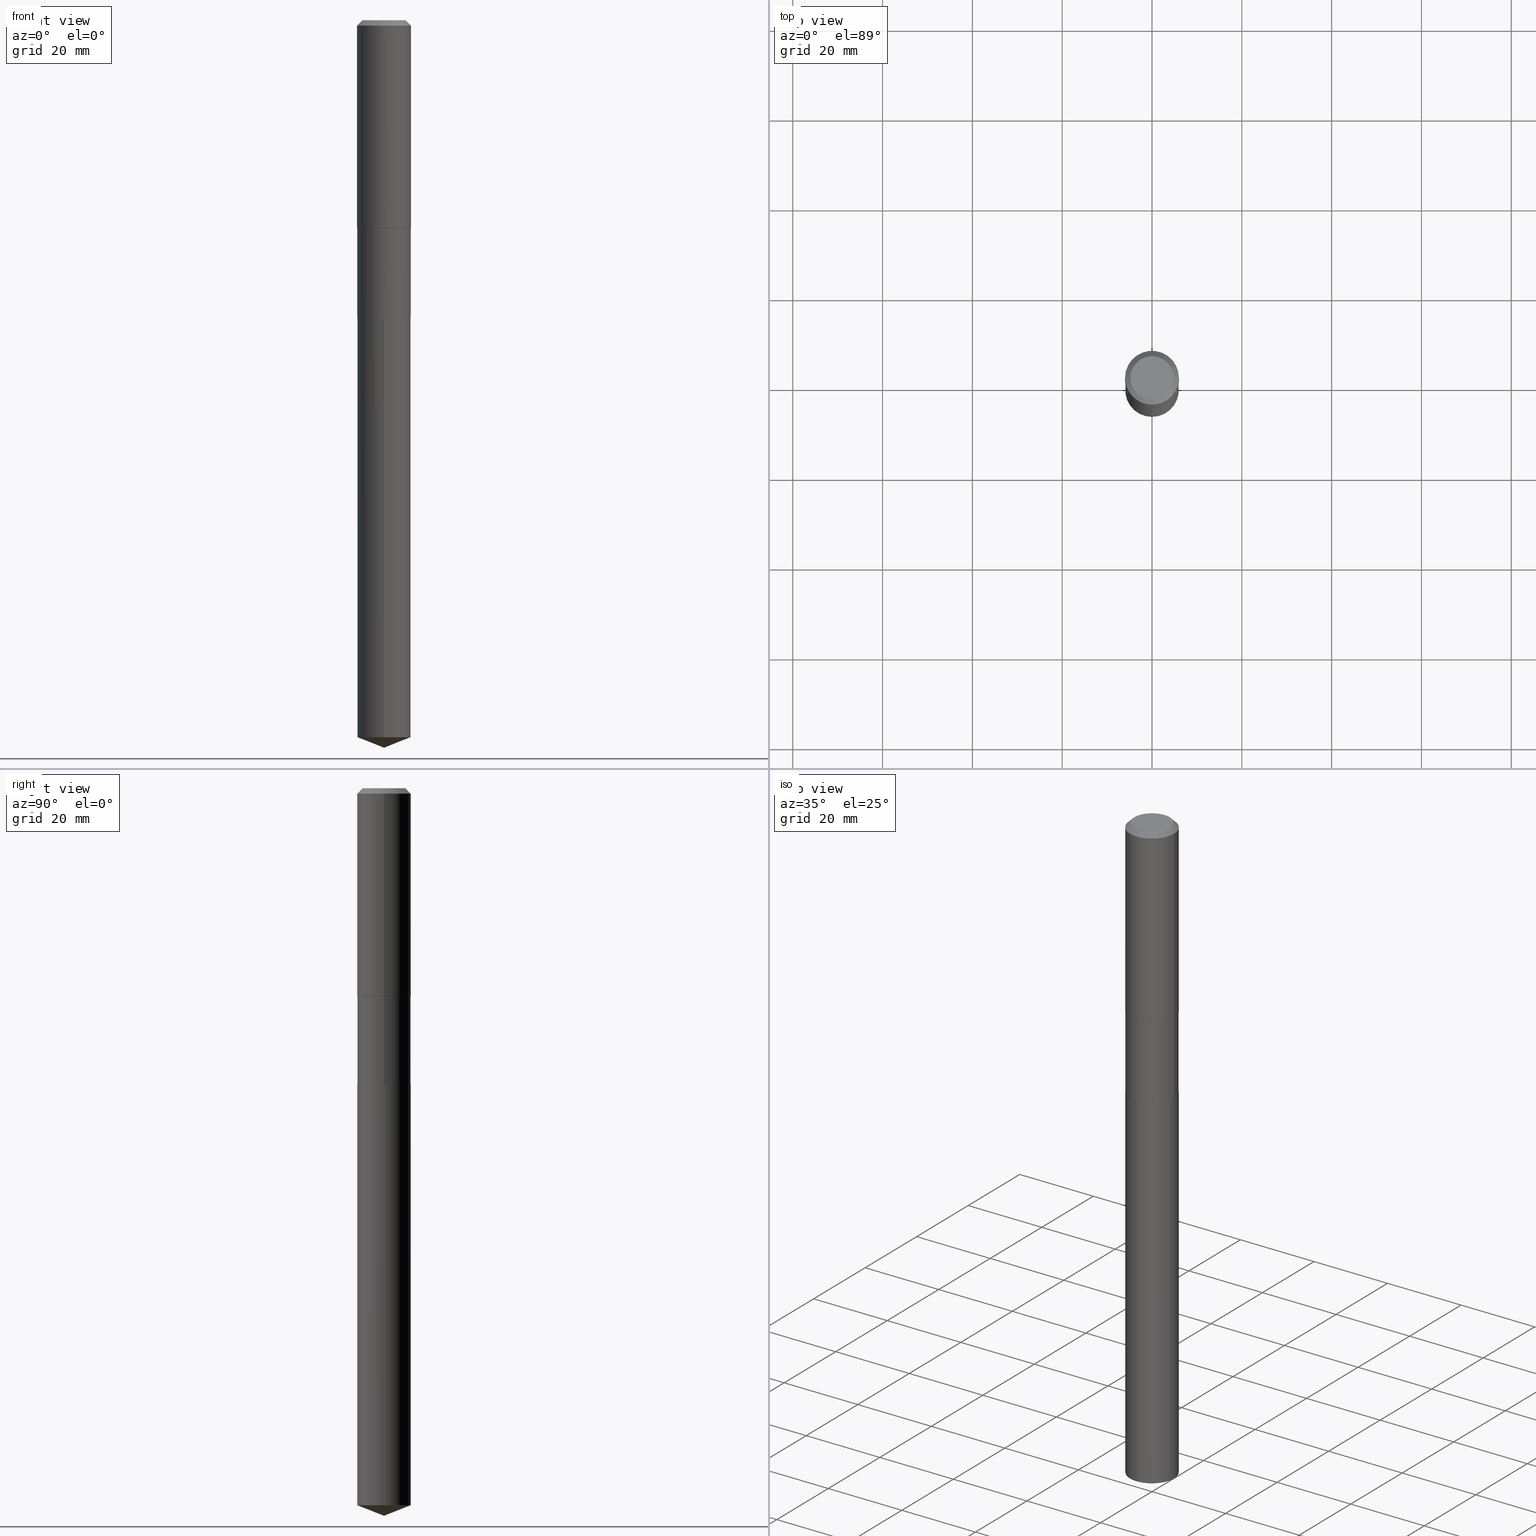
[diagram: canonical four-view strip — front | top / right | iso, engineering-drawing reading convention]
A machine part, canonical four-view strip (front | top / right | iso — engineering-drawing reading convention). The complete STEP part file that produces these views, byte-faithful:
ISO-10303-21;
HEADER;
FILE_DESCRIPTION (( 'STEP AP203' ),
    '1' );
FILE_NAME ('56498.STEP',
    '2024-04-24T18:14:39',
    ( '' ),
    ( '' ),
    'SwSTEP 2.0',
    'SolidWorks 2023',
    '' );
FILE_SCHEMA (( 'CONFIG_CONTROL_DESIGN' ));
ENDSEC;

DATA;
#1 = APPROVAL ( #47, 'UNSPECIFIED' ) ;
#2 = CARTESIAN_POINT ( 'NONE',  ( -0.2362000000000001321, 1.678301941865357577E-15, -1.161852468318209457E-29 ) ) ;
#3 = VECTOR ( 'NONE', #214, 39.37007874015748143 ) ;
#4 = EDGE_CURVE ( 'NONE', #413, #60, #53, .T. ) ;
#5 = LINE ( 'NONE', #144, #486 ) ;
#6 = DIRECTION ( 'NONE',  ( -2.445468806185136597E-29, 3.491481338843145583E-15, 1.000000000000000000 ) ) ;
#7 = EDGE_LOOP ( 'NONE', ( #440, #189, #9, #14 ) ) ;
#8 = DATE_AND_TIME ( #268, #211 ) ;
#9 = ORIENTED_EDGE ( 'NONE', *, *, #290, .T. ) ;
#10 = AXIS2_PLACEMENT_3D ( 'NONE', #411, #184, #182 ) ;
#11 = PERSON_AND_ORGANIZATION_ROLE ( 'creator' ) ;
#12 = DIRECTION ( 'NONE',  ( -2.445468806185136597E-29, 3.491481338843145583E-15, 1.000000000000000000 ) ) ;
#13 = LINE ( 'NONE', #243, #477 ) ;
#14 = ORIENTED_EDGE ( 'NONE', *, *, #44, .F. ) ;
#15 = COORDINATED_UNIVERSAL_TIME_OFFSET ( 5, 0, .BEHIND. ) ;
#16 = ORIENTED_EDGE ( 'NONE', *, *, #44, .T. ) ;
#17 = LENGTH_MEASURE_WITH_UNIT ( LENGTH_MEASURE( 0.02539999999999999897 ), #26 );
#18 = DIRECTION ( 'NONE',  ( 1.000000000000000000, -6.982962677686267499E-15, 0.000000000000000000 ) ) ;
#19 = MANIFOLD_SOLID_BREP ( 'Body-Move/Copy2[2]', #320 ) ;
#20 = EDGE_CURVE ( 'NONE', #326, #436, #399, .T. ) ;
#21 = DIRECTION ( 'NONE',  ( 1.000000000000000000, -6.982962677686265133E-15, 0.000000000000000000 ) ) ;
#22 = EDGE_LOOP ( 'NONE', ( #224, #400, #433, #256 ) ) ;
#23 = DIRECTION ( 'NONE',  ( -2.445468806185136597E-29, 3.491481338843145583E-15, 1.000000000000000000 ) ) ;
#24 = ORIENTED_EDGE ( 'NONE', *, *, #247, .T. ) ;
#25 = CARTESIAN_POINT ( 'NONE',  ( 4.449285945973238276E-29, -6.352401147891219622E-15, -1.819400000000000350 ) ) ;
#26 =( LENGTH_UNIT ( ) NAMED_UNIT ( * ) SI_UNIT ( $, .METRE. ) );
#27 = CIRCLE ( 'NONE', #142, 0.2343999999999999972 ) ;
#28 = EDGE_LOOP ( 'NONE', ( #45, #460 ) ) ;
#29 = DIRECTION ( 'NONE',  ( 1.000000000000000000, -6.982962677686265133E-15, 0.000000000000000000 ) ) ;
#30 = FACE_OUTER_BOUND ( 'NONE', #276, .T. ) ;
#31 = DIRECTION ( 'NONE',  ( 0.000000000000000000, 0.000000000000000000, 1.000000000000000000 ) ) ;
#32 = ORIENTED_EDGE ( 'NONE', *, *, #194, .T. ) ;
#33 = DIRECTION ( 'NONE',  ( 2.445468806185136597E-29, -3.491481338843145583E-15, -1.000000000000000000 ) ) ;
#34 = EDGE_CURVE ( 'NONE', #326, #134, #279, .T. ) ;
#35 = VECTOR ( 'NONE', #379, 39.37007874015748143 ) ;
#36 = DIRECTION ( 'NONE',  ( 1.000000000000000000, -6.982962677686263555E-15, 0.000000000000000000 ) ) ;
#37 = LINE ( 'NONE', #487, #272 ) ;
#38 = DIRECTION ( 'NONE',  ( 6.982962677686265922E-15, 1.000000000000000000, -3.491616999277284562E-15 ) ) ;
#39 = ADVANCED_FACE ( 'NONE', ( #312 ), #167, .T. ) ;
#40 = CARTESIAN_POINT ( 'NONE',  ( 1.537080967831005091E-28, -2.194644142980637157E-14, -6.285567384515859501 ) ) ;
#41 = LOCAL_TIME ( 14, 14, 39.00000000000000000, #154 ) ;
#42 = ORIENTED_EDGE ( 'NONE', *, *, #393, .T. ) ;
#43 = CALENDAR_DATE ( 2024, 24, 4 ) ;
#44 = EDGE_CURVE ( 'NONE', #178, #246, #69, .T. ) ;
#45 = ORIENTED_EDGE ( 'NONE', *, *, #393, .F. ) ;
#46 = VECTOR ( 'NONE', #476, 39.37007874015748143 ) ;
#47 = APPROVAL_STATUS ( 'not_yet_approved' ) ;
#48 = CIRCLE ( 'NONE', #152, 0.1889600000000000168 ) ;
#49 = DIRECTION ( 'NONE',  ( -2.445468806185136597E-29, 3.491481338843145583E-15, 1.000000000000000000 ) ) ;
#50 = ORIENTED_EDGE ( 'NONE', *, *, #344, .T. ) ;
#51 = ADVANCED_FACE ( 'NONE', ( #30 ), #61, .F. ) ;
#52 = EDGE_LOOP ( 'NONE', ( #295, #16, #116, #323 ) ) ;
#53 = CIRCLE ( 'NONE', #289, 0.2362000000000000210 ) ;
#54 = AXIS2_PLACEMENT_3D ( 'NONE', #363, #398, #83 ) ;
#55 = DIRECTION ( 'NONE',  ( -2.445374075010293314E-29, 3.491616999277284957E-15, 1.000000000000000000 ) ) ;
#56 = ADVANCED_FACE ( 'NONE', ( #135 ), #368, .F. ) ;
#57 = CYLINDRICAL_SURFACE ( 'NONE', #125, 0.2343999999999999972 ) ;
#58 = DIRECTION ( 'NONE',  ( -2.445468806185136597E-29, 3.491481338843145583E-15, 1.000000000000000000 ) ) ;
#59 = FACE_OUTER_BOUND ( 'NONE', #22, .T. ) ;
#60 = VERTEX_POINT ( 'NONE', #222 ) ;
#61 = PLANE ( 'NONE',  #347 ) ;
#62 = EDGE_LOOP ( 'NONE', ( #159, #336, #251, #245 ) ) ;
#63 = DIRECTION ( 'NONE',  ( 1.000000000000000000, -6.982962677686263555E-15, 0.000000000000000000 ) ) ;
#64 = EDGE_CURVE ( 'NONE', #485, #123, #437, .T. ) ;
#65 = ORIENTED_EDGE ( 'NONE', *, *, #430, .F. ) ;
#66 = DIRECTION ( 'NONE',  ( -1.000000000000000000, 6.982962677686267499E-15, 0.000000000000000000 ) ) ;
#67 = PRODUCT_DEFINITION_SHAPE ( 'NONE', 'NONE',  #216 ) ;
#68 = CC_DESIGN_PERSON_AND_ORGANIZATION_ASSIGNMENT ( #108, #234, ( #109 ) ) ;
#69 = CIRCLE ( 'NONE', #95, 0.2344000000000000250 ) ;
#70 = DIRECTION ( 'NONE',  ( 1.000000000000000000, -6.982962677686263555E-15, 0.000000000000000000 ) ) ;
#71 = CIRCLE ( 'NONE', #352, 0.2343999999999999972 ) ;
#72 = DIRECTION ( 'NONE',  ( -6.982962677686265922E-15, -1.000000000000000000, 2.330928322239132474E-15 ) ) ;
#73 = EDGE_CURVE ( 'NONE', #246, #326, #90, .T. ) ;
#74 = LINE ( 'NONE', #107, #454 ) ;
#75 = APPROVAL_DATE_TIME ( #238, #369 ) ;
#76 = DIRECTION ( 'NONE',  ( 1.000000000000000000, -6.982962677686266711E-15, 4.876185090822587894E-29 ) ) ;
#77 = ORIENTED_EDGE ( 'NONE', *, *, #422, .F. ) ;
#78 = EDGE_CURVE ( 'NONE', #483, #284, #225, .T. ) ;
#79 = ORIENTED_EDGE ( 'NONE', *, *, #267, .T. ) ;
#80 = ORIENTED_EDGE ( 'NONE', *, *, #410, .T. ) ;
#81 = AXIS2_PLACEMENT_3D ( 'NONE', #291, #254, #443 ) ;
#82 = ORIENTED_EDGE ( 'NONE', *, *, #465, .T. ) ;
#83 = DIRECTION ( 'NONE',  ( -6.982962677686265922E-15, -1.000000000000000000, 2.330928322239132474E-15 ) ) ;
#84 = EDGE_LOOP ( 'NONE', ( #353, #77, #446, #274 ) ) ;
#85 = CARTESIAN_POINT ( 'NONE',  ( 1.559635131300814861E-28, -2.226918405969060359E-14, -6.377900000000001235 ) ) ;
#86 = CIRCLE ( 'NONE', #262, 0.2362000000000000210 ) ;
#87 =( NAMED_UNIT ( * ) SI_UNIT ( $, .STERADIAN. ) SOLID_ANGLE_UNIT ( ) );
#88 = DIRECTION ( 'NONE',  ( 1.000000000000000000, -6.982962677686269077E-15, 0.000000000000000000 ) ) ;
#89 = ORIENTED_EDGE ( 'NONE', *, *, #304, .F. ) ;
#90 = LINE ( 'NONE', #473, #223 ) ;
#91 = DIRECTION ( 'NONE',  ( 1.000000000000000000, -6.982962677686266711E-15, 4.876176775795936353E-29 ) ) ;
#92 = ORIENTED_EDGE ( 'NONE', *, *, #422, .T. ) ;
#93 = DIRECTION ( 'NONE',  ( -2.445468806185136597E-29, 3.491481338843145583E-15, 1.000000000000000000 ) ) ;
#94 = CARTESIAN_POINT ( 'NONE',  ( 1.665512172621738122E-15, 0.2343999999999909212, -2.598400000000001597 ) ) ;
#95 = AXIS2_PLACEMENT_3D ( 'NONE', #244, #49, #362 ) ;
#96 = AXIS2_PLACEMENT_3D ( 'NONE', #450, #33, #66 ) ;
#97 = AXIS2_PLACEMENT_3D ( 'NONE', #213, #405, #91 ) ;
#98 = CARTESIAN_POINT ( 'NONE',  ( -1.636806451649507083E-15, -0.2344000000000218964, -6.285567384515857725 ) ) ;
#99 = ADVANCED_FACE ( 'NONE', ( #337 ), #377, .T. ) ;
#100 = ORIENTED_EDGE ( 'NONE', *, *, #34, .F. ) ;
#101 = DIRECTION ( 'NONE',  ( -6.982962677686265922E-15, -1.000000000000000000, 4.661856644478264948E-15 ) ) ;
#102 = CC_DESIGN_DATE_AND_TIME_ASSIGNMENT ( #121, #277, ( #109 ) ) ;
#103 = CARTESIAN_POINT ( 'NONE',  ( 0.000000000000000000, 0.000000000000000000, 0.000000000000000000 ) ) ;
#104 = VECTOR ( 'NONE', #231, 39.37007874015748143 ) ;
#105 = DIRECTION ( 'NONE',  ( -2.445468806185136597E-29, 3.491481338843145583E-15, 1.000000000000000000 ) ) ;
#106 = CIRCLE ( 'NONE', #321, 0.2344000000000000250 ) ;
#107 = CARTESIAN_POINT ( 'NONE',  ( -0.2362000000000000210, 1.484438206022545019E-15, -0.04724000000000030952 ) ) ;
#108 = PERSON_AND_ORGANIZATION ( #265, #166 ) ;
#109 = SECURITY_CLASSIFICATION ( '', '', #168 ) ;
#110 = DIRECTION ( 'NONE',  ( -2.445374075010293314E-29, 3.491616999277284957E-15, 1.000000000000000000 ) ) ;
#111 = PERSON_AND_ORGANIZATION_ROLE ( 'creator' ) ;
#112 = FACE_OUTER_BOUND ( 'NONE', #52, .T. ) ;
#113 = EDGE_LOOP ( 'NONE', ( #143, #392, #212, #205 ) ) ;
#114 = ADVANCED_FACE ( 'NONE', ( #448 ), #360, .T. ) ;
#115 = COORDINATED_UNIVERSAL_TIME_OFFSET ( 5, 0, .BEHIND. ) ;
#116 = ORIENTED_EDGE ( 'NONE', *, *, #73, .T. ) ;
#117 = COORDINATED_UNIVERSAL_TIME_OFFSET ( 5, 0, .BEHIND. ) ;
#118 = CARTESIAN_POINT ( 'NONE',  ( 0.000000000000000000, 0.000000000000000000, 0.000000000000000000 ) ) ;
#119 = DIRECTION ( 'NONE',  ( -6.982962677686266711E-15, -1.000000000000000000, 3.498627837350010928E-15 ) ) ;
#120 = CARTESIAN_POINT ( 'NONE',  ( 4.449285945973238276E-29, -6.352401147891219622E-15, -1.819400000000000350 ) ) ;
#121 = DATE_AND_TIME ( #462, #188 ) ;
#122 = UNCERTAINTY_MEASURE_WITH_UNIT (LENGTH_MEASURE( 1.000000000000000082E-05 ), #396, 'distance_accuracy_value', 'NONE');
#123 = VERTEX_POINT ( 'NONE', #98 ) ;
#124 = AXIS2_PLACEMENT_3D ( 'NONE', #25, #257, #21 ) ;
#125 = AXIS2_PLACEMENT_3D ( 'NONE', #219, #335, #252 ) ;
#126 = ORIENTED_EDGE ( 'NONE', *, *, #290, .F. ) ;
#127 = CARTESIAN_POINT ( 'NONE',  ( 6.354306145991460877E-29, -9.072265110850034200E-15, -2.598400000000000709 ) ) ;
#128 = CARTESIAN_POINT ( 'NONE',  ( 1.559635131300814861E-28, -2.226918405969059728E-14, -6.377900000000001235 ) ) ;
#129 = DIRECTION ( 'NONE',  ( -2.445468806185136597E-29, 3.491481338843145583E-15, 1.000000000000000000 ) ) ;
#130 = FACE_OUTER_BOUND ( 'NONE', #350, .T. ) ;
#131 = ADVANCED_FACE ( 'NONE', ( #59 ), #461, .T. ) ;
#132 = AXIS2_PLACEMENT_3D ( 'NONE', #120, #172, #322 ) ;
#133 = AXIS2_PLACEMENT_3D ( 'NONE', #232, #376, #36 ) ;
#134 = VERTEX_POINT ( 'NONE', #401 ) ;
#135 = FACE_OUTER_BOUND ( 'NONE', #28, .T. ) ;
#136 = CC_DESIGN_PERSON_AND_ORGANIZATION_ASSIGNMENT ( #385, #111, ( #482 ) ) ;
#137 = ORIENTED_EDGE ( 'NONE', *, *, #438, .F. ) ;
#138 = DIRECTION ( 'NONE',  ( 1.000000000000000000, -6.982962677686267499E-15, 0.000000000000000000 ) ) ;
#139 = ORIENTED_EDGE ( 'NONE', *, *, #207, .F. ) ;
#140 = ADVANCED_FACE ( 'NONE', ( #288 ), #57, .T. ) ;
#141 = CARTESIAN_POINT ( 'NONE',  ( 4.449285945973238276E-29, -6.352401147891219622E-15, -1.819400000000000350 ) ) ;
#142 = AXIS2_PLACEMENT_3D ( 'NONE', #266, #190, #101 ) ;
#143 = ORIENTED_EDGE ( 'NONE', *, *, #304, .T. ) ;
#144 = CARTESIAN_POINT ( 'NONE',  ( -0.2343999999999998862, -4.686888975269545989E-15, -1.819400000000000350 ) ) ;
#145 = APPLICATION_PROTOCOL_DEFINITION ( 'international standard', 'config_control_design', 1994, #165 ) ;
#146 = DIMENSIONAL_EXPONENTS ( 1.000000000000000000, 0.000000000000000000, 0.000000000000000000, 0.000000000000000000, 0.000000000000000000, 0.000000000000000000, 0.000000000000000000 ) ;
#147 = CARTESIAN_POINT ( 'NONE',  ( 6.354306145991460877E-29, -9.072265110850034200E-15, -2.598400000000000709 ) ) ;
#148 = EDGE_CURVE ( 'NONE', #170, #284, #346, .T. ) ;
#149 = CC_DESIGN_APPROVAL ( #1, ( #109 ) ) ;
#150 = CARTESIAN_POINT ( 'NONE',  ( -0.2362000000000002153, -4.667814539615944237E-15, -1.817600000000000104 ) ) ;
#151 = DIRECTION ( 'NONE',  ( -0.7071067811865608954, 7.493145998870403070E-15, 0.7071067811865341390 ) ) ;
#152 = AXIS2_PLACEMENT_3D ( 'NONE', #281, #6, #76 ) ;
#153 = CONICAL_SURFACE ( 'NONE', #402, 0.2338999999999999968, 0.7853981633973118326 ) ;
#154 = COORDINATED_UNIVERSAL_TIME_OFFSET ( 5, 0, .BEHIND. ) ;
#155 = LINE ( 'NONE', #237, #384 ) ;
#156 = CARTESIAN_POINT ( 'NONE',  ( 0.2344000000000000250, -1.070732582183027361E-14, -2.597900000000000542 ) ) ;
#157 = APPROVAL_ROLE ( '' ) ;
#158 = EDGE_CURVE ( 'NONE', #395, #358, #383, .T. ) ;
#159 = ORIENTED_EDGE ( 'NONE', *, *, #328, .F. ) ;
#160 = APPROVAL_DATE_TIME ( #306, #201 ) ;
#161 = CONICAL_SURFACE ( 'NONE', #81, 99.94676754583977640, 1.195550537616118847 ) ;
#162 = ORIENTED_EDGE ( 'NONE', *, *, #73, .F. ) ;
#163 = CIRCLE ( 'NONE', #442, 0.1889600000000000168 ) ;
#164 = APPROVAL_ROLE ( '' ) ;
#165 = APPLICATION_CONTEXT ( 'configuration controlled 3d designs of mechanical parts and assemblies' ) ;
#166 = ORGANIZATION ( 'UNSPECIFIED', 'UNSPECIFIED', '' ) ;
#167 = CYLINDRICAL_SURFACE ( 'NONE', #341, 0.2362000000000001321 ) ;
#168 = SECURITY_CLASSIFICATION_LEVEL ( 'unclassified' ) ;
#169 = EDGE_CURVE ( 'NONE', #309, #413, #249, .T. ) ;
#170 = VERTEX_POINT ( 'NONE', #179 ) ;
#171 = DIRECTION ( 'NONE',  ( 1.000000000000000000, -6.982962677686266711E-15, 4.876176775795935793E-29 ) ) ;
#172 = DIRECTION ( 'NONE',  ( -2.445468806185136597E-29, 3.491481338843145583E-15, 1.000000000000000000 ) ) ;
#173 = VECTOR ( 'NONE', #218, 39.37007874015748143 ) ;
#174 = AXIS2_PLACEMENT_3D ( 'NONE', #307, #12, #457 ) ;
#175 = DIRECTION ( 'NONE',  ( -2.445468806185136597E-29, 3.491481338843145583E-15, 1.000000000000000000 ) ) ;
#176 = DIRECTION ( 'NONE',  ( -6.982962677686265922E-15, -1.000000000000000000, 2.330928322239132474E-15 ) ) ;
#177 =( NAMED_UNIT ( * ) PLANE_ANGLE_UNIT ( ) SI_UNIT ( $, .RADIAN. ) );
#178 = VERTEX_POINT ( 'NONE', #327 ) ;
#179 = CARTESIAN_POINT ( 'NONE',  ( -1.636806451649597210E-15, -0.2344000000000090733, -2.598400000000000265 ) ) ;
#180 = ADVANCED_FACE ( 'NONE', ( #130 ), #161, .T. ) ;
#181 = DIRECTION ( 'NONE',  ( 1.000000000000000000, -6.982962677686266711E-15, 4.876185090822587894E-29 ) ) ;
#182 = DIRECTION ( 'NONE',  ( -1.000000000000000000, 6.982962677686267499E-15, 0.000000000000000000 ) ) ;
#183 = AXIS2_PLACEMENT_3D ( 'NONE', #340, #110, #72 ) ;
#184 = DIRECTION ( 'NONE',  ( 2.445468806185136597E-29, -3.491481338843145583E-15, -1.000000000000000000 ) ) ;
#185 = AXIS2_PLACEMENT_3D ( 'NONE', #294, #31, #338 ) ;
#186 = MANIFOLD_SOLID_BREP ( 'Body-Move/Copy2[1]', #439 ) ;
#187 = CARTESIAN_POINT ( 'NONE',  ( 1.155239464041866207E-30, -1.649375784469512845E-16, -0.04724000000000030952 ) ) ;
#188 = LOCAL_TIME ( 14, 14, 39.00000000000000000, #117 ) ;
#189 = ORIENTED_EDGE ( 'NONE', *, *, #158, .T. ) ;
#190 = DIRECTION ( 'NONE',  ( -2.445374075010293314E-29, 3.491616999277284957E-15, 1.000000000000000000 ) ) ;
#191 = AXIS2_PLACEMENT_3D ( 'NONE', #404, #324, #445 ) ;
#192 = FACE_OUTER_BOUND ( 'NONE', #298, .T. ) ;
#193 = CYLINDRICAL_SURFACE ( 'NONE', #183, 0.2343999999999999972 ) ;
#194 = EDGE_CURVE ( 'NONE', #436, #326, #204, .T. ) ;
#195 = DIRECTION ( 'NONE',  ( -2.445374075010293314E-29, 3.491616999277284957E-15, 1.000000000000000000 ) ) ;
#196 = SHAPE_DEFINITION_REPRESENTATION ( #67, #468 ) ;
#197 = CARTESIAN_POINT ( 'NONE',  ( -0.2343999999999999695, 1.665512172621674619E-15, -1.152998385155749684E-29 ) ) ;
#198 = CIRCLE ( 'NONE', #133, 0.2338999999999999968 ) ;
#199 = EDGE_CURVE ( 'NONE', #60, #413, #86, .T. ) ;
#200 = PERSON_AND_ORGANIZATION ( #265, #166 ) ;
#201 = APPROVAL ( #270, 'UNSPECIFIED' ) ;
#202 = EDGE_LOOP ( 'NONE', ( #444, #32, #253, #258 ) ) ;
#203 = DIRECTION ( 'NONE',  ( -2.445468806185136877E-29, 3.491481338843145188E-15, 1.000000000000000000 ) ) ;
#204 = CIRCLE ( 'NONE', #297, 0.2343999999999998862 ) ;
#205 = ORIENTED_EDGE ( 'NONE', *, *, #344, .F. ) ;
#206 = VECTOR ( 'NONE', #375, 39.37007874015748143 ) ;
#207 = EDGE_CURVE ( 'NONE', #134, #248, #250, .T. ) ;
#208 = APPROVAL_ROLE ( '' ) ;
#209 = CARTESIAN_POINT ( 'NONE',  ( 0.2343999999999998862, -7.989207599540879743E-15, -1.819400000000000350 ) ) ;
#210 = APPROVAL_PERSON_ORGANIZATION ( #240, #369, #164 ) ;
#211 = LOCAL_TIME ( 14, 14, 39.00000000000000000, #15 ) ;
#212 = ORIENTED_EDGE ( 'NONE', *, *, #148, .F. ) ;
#213 = CARTESIAN_POINT ( 'NONE',  ( 0.000000000000000000, 0.000000000000000000, 0.000000000000000000 ) ) ;
#214 = DIRECTION ( 'NONE',  ( 0.7071067811865608954, -2.468850131082397083E-15, 0.7071067811865341390 ) ) ;
#215 = AXIS2_PLACEMENT_3D ( 'NONE', #118, #429, #171 ) ;
#216 = PRODUCT_DEFINITION ( 'UNKNOWN', '', #482, #386 ) ;
#217 = ORIENTED_EDGE ( 'NONE', *, *, #64, .F. ) ;
#218 = DIRECTION ( 'NONE',  ( 0.7071067811865453523, -7.319954787623248157E-15, -0.7071067811865496822 ) ) ;
#219 = CARTESIAN_POINT ( 'NONE',  ( 6.354306145991460877E-29, -9.072265110850034200E-15, -2.598400000000000709 ) ) ;
#220 = APPROVAL_PERSON_ORGANIZATION ( #200, #201, #157 ) ;
#221 = DIRECTION ( 'NONE',  ( 1.000000000000000000, -6.982962677686263555E-15, 0.000000000000000000 ) ) ;
#222 = CARTESIAN_POINT ( 'NONE',  ( -0.2362000000000000210, -1.577225088098769181E-15, -0.04724000000000030952 ) ) ;
#223 = VECTOR ( 'NONE', #365, 39.37007874015748143 ) ;
#224 = ORIENTED_EDGE ( 'NONE', *, *, #479, .F. ) ;
#225 = LINE ( 'NONE', #94, #447 ) ;
#226 = LINE ( 'NONE', #2, #378 ) ;
#227 = APPROVAL_PERSON_ORGANIZATION ( #391, #1, #208 ) ;
#228 = ORIENTED_EDGE ( 'NONE', *, *, #465, .F. ) ;
#229 = LINE ( 'NONE', #197, #104 ) ;
#230 = MECHANICAL_CONTEXT ( 'NONE', #165, 'mechanical' ) ;
#231 = DIRECTION ( 'NONE',  ( -2.445468806185136877E-29, 3.491481338843145188E-15, 1.000000000000000000 ) ) ;
#232 = CARTESIAN_POINT ( 'NONE',  ( 6.354306145991460877E-29, -9.072265110850034200E-15, -2.598400000000000709 ) ) ;
#233 = PRODUCT_RELATED_PRODUCT_CATEGORY ( 'detail', '', ( #372 ) ) ;
#234 = PERSON_AND_ORGANIZATION_ROLE ( 'classification_officer' ) ;
#235 = CARTESIAN_POINT ( 'NONE',  ( 1.665512172621829236E-15, 0.2343999999999909212, -2.598400000000001597 ) ) ;
#236 = EDGE_CURVE ( 'NONE', #178, #436, #229, .T. ) ;
#237 = CARTESIAN_POINT ( 'NONE',  ( 0.2362000000000001321, -1.649375784469497117E-15, 1.151752954443000789E-29 ) ) ;
#238 = DATE_AND_TIME ( #354, #41 ) ;
#239 = CARTESIAN_POINT ( 'NONE',  ( 1.155239464041866207E-30, -1.649375784469512845E-16, -0.04724000000000030952 ) ) ;
#240 = PERSON_AND_ORGANIZATION ( #265, #166 ) ;
#241 = EDGE_CURVE ( 'NONE', #287, #60, #74, .T. ) ;
#242 = ORIENTED_EDGE ( 'NONE', *, *, #479, .T. ) ;
#243 = CARTESIAN_POINT ( 'NONE',  ( -0.2338999999999999968, -7.410305651907159888E-15, -2.598400000000000709 ) ) ;
#244 = CARTESIAN_POINT ( 'NONE',  ( 6.353083411588368076E-29, -9.070519370180611907E-15, -2.597900000000000542 ) ) ;
#245 = ORIENTED_EDGE ( 'NONE', *, *, #199, .F. ) ;
#246 = VERTEX_POINT ( 'NONE', #156 ) ;
#247 = EDGE_CURVE ( 'NONE', #483, #123, #27, .T. ) ;
#248 = VERTEX_POINT ( 'NONE', #150 ) ;
#249 = LINE ( 'NONE', #441, #173 ) ;
#250 = CIRCLE ( 'NONE', #332, 0.2362000000000002153 ) ;
#251 = ORIENTED_EDGE ( 'NONE', *, *, #438, .T. ) ;
#252 = DIRECTION ( 'NONE',  ( -6.982962677686265922E-15, -1.000000000000000000, 2.330928322239132474E-15 ) ) ;
#253 = ORIENTED_EDGE ( 'NONE', *, *, #34, .T. ) ;
#254 = DIRECTION ( 'NONE',  ( -2.445374075010293314E-29, 3.491616999277284957E-15, 1.000000000000000000 ) ) ;
#255 = CARTESIAN_POINT ( 'NONE',  ( 4.444884102122104078E-29, -6.346116481481302209E-15, -1.817600000000000104 ) ) ;
#256 = ORIENTED_EDGE ( 'NONE', *, *, #241, .F. ) ;
#257 = DIRECTION ( 'NONE',  ( -2.445468806185136597E-29, 3.491481338843145583E-15, 1.000000000000000000 ) ) ;
#258 = ORIENTED_EDGE ( 'NONE', *, *, #452, .F. ) ;
#259 = CARTESIAN_POINT ( 'NONE',  ( 0.2338999999999999968, -1.070558008116085131E-14, -2.598400000000000709 ) ) ;
#260 = ADVANCED_FACE ( 'NONE', ( #382 ), #261, .F. ) ;
#261 = PLANE ( 'NONE',  #423 ) ;
#262 = AXIS2_PLACEMENT_3D ( 'NONE', #187, #481, #138 ) ;
#263 = AXIS2_PLACEMENT_3D ( 'NONE', #301, #299, #70 ) ;
#264 = CARTESIAN_POINT ( 'NONE',  ( 0.2338999999999999968, -1.070558008116085131E-14, -2.598400000000000709 ) ) ;
#265 = PERSON ( 'UNSPECIFIED', 'UNSPECIFIED', 'UNSPECIFIED', ('UNSPECIFIED'), ('UNSPECIFIED'), ('UNSPECIFIED') ) ;
#266 = CARTESIAN_POINT ( 'NONE',  ( 1.537080967831005091E-28, -2.194644142980637157E-14, -6.285567384515859501 ) ) ;
#267 = EDGE_CURVE ( 'NONE', #436, #248, #5, .T. ) ;
#268 = CALENDAR_DATE ( 2024, 24, 4 ) ;
#269 = LINE ( 'NONE', #259, #35 ) ;
#270 = APPROVAL_STATUS ( 'not_yet_approved' ) ;
#271 = CYLINDRICAL_SURFACE ( 'NONE', #215, 0.2343999999999999695 ) ;
#272 = VECTOR ( 'NONE', #421, 39.37007874015748854 ) ;
#273 = CONICAL_SURFACE ( 'NONE', #418, 99.94676754583977640, 1.195550537616118847 ) ;
#274 = ORIENTED_EDGE ( 'NONE', *, *, #199, .T. ) ;
#275 = APPROVAL_DATE_TIME ( #381, #1 ) ;
#276 = EDGE_LOOP ( 'NONE', ( #92, #242 ) ) ;
#277 = DATE_TIME_ROLE ( 'classification_date' ) ;
#278 = EDGE_CURVE ( 'NONE', #485, #483, #37, .T. ) ;
#279 = LINE ( 'NONE', #209, #3 ) ;
#280 = CALENDAR_DATE ( 2024, 24, 4 ) ;
#281 = CARTESIAN_POINT ( 'NONE',  ( -9.427742298522546243E-47, 1.346031739168365344E-32, 3.855188123715862256E-18 ) ) ;
#282 = EDGE_LOOP ( 'NONE', ( #435, #82 ) ) ;
#283 = CARTESIAN_POINT ( 'NONE',  ( 1.665512172621827855E-15, 0.2343999999999780426, -6.285567384515860390 ) ) ;
#284 = VERTEX_POINT ( 'NONE', #235 ) ;
#285 = ADVANCED_FACE ( 'NONE', ( #420 ), #311, .T. ) ;
#286 = DIRECTION ( 'NONE',  ( 2.438088387897960049E-29, -3.491481338843145188E-15, -1.000000000000000000 ) ) ;
#287 = VERTEX_POINT ( 'NONE', #302 ) ;
#288 = FACE_OUTER_BOUND ( 'NONE', #113, .T. ) ;
#289 = AXIS2_PLACEMENT_3D ( 'NONE', #239, #390, #18 ) ;
#290 = EDGE_CURVE ( 'NONE', #358, #246, #269, .T. ) ;
#291 = CARTESIAN_POINT ( 'NONE',  ( -8.067797241980214839E-28, 1.151964046324005507E-13, 32.99217874015747753 ) ) ;
#292 = CYLINDRICAL_SURFACE ( 'NONE', #97, 0.2362000000000001321 ) ;
#293 = CARTESIAN_POINT ( 'NONE',  ( -4.713871149261273121E-47, 6.730158695841826722E-33, 1.927594061857931128E-18 ) ) ;
#294 = CARTESIAN_POINT ( 'NONE',  ( 0.000000000000000000, 0.000000000000000000, 0.000000000000000000 ) ) ;
#295 = ORIENTED_EDGE ( 'NONE', *, *, #236, .F. ) ;
#296 = DIRECTION ( 'NONE',  ( 1.000000000000000000, -6.982962677686265133E-15, 0.000000000000000000 ) ) ;
#297 = AXIS2_PLACEMENT_3D ( 'NONE', #406, #370, #29 ) ;
#298 = EDGE_LOOP ( 'NONE', ( #217, #427, #89 ) ) ;
#299 = DIRECTION ( 'NONE',  ( -2.445468806185136597E-29, 3.491481338843145583E-15, 1.000000000000000000 ) ) ;
#300 = CC_DESIGN_PERSON_AND_ORGANIZATION_ASSIGNMENT ( #432, #426, ( #372 ) ) ;
#301 = CARTESIAN_POINT ( 'NONE',  ( 6.354306145991460877E-29, -9.072265110850034200E-15, -2.598400000000000709 ) ) ;
#302 = CARTESIAN_POINT ( 'NONE',  ( -0.1889600000000000168, 1.401969416799070942E-15, 3.855188123706346622E-18 ) ) ;
#303 = AXIS2_PLACEMENT_3D ( 'NONE', #141, #93, #296 ) ;
#304 = EDGE_CURVE ( 'NONE', #123, #483, #71, .T. ) ;
#305 = DIRECTION ( 'NONE',  ( 1.000000000000000000, -6.982962677686266711E-15, 4.876176775795935793E-29 ) ) ;
#306 = DATE_AND_TIME ( #43, #325 ) ;
#307 = CARTESIAN_POINT ( 'NONE',  ( 4.444884102122104078E-29, -6.346116481481302209E-15, -1.817600000000000104 ) ) ;
#308 = DIRECTION ( 'NONE',  ( 2.445374075010293034E-29, -3.491616999277284562E-15, -1.000000000000000000 ) ) ;
#309 = VERTEX_POINT ( 'NONE', #458 ) ;
#310 = PERSON_AND_ORGANIZATION_ROLE ( 'design_supplier' ) ;
#311 = CONICAL_SURFACE ( 'NONE', #263, 0.2338999999999999968, 0.7853981633973118326 ) ;
#312 = FACE_OUTER_BOUND ( 'NONE', #425, .T. ) ;
#313 = CC_DESIGN_PERSON_AND_ORGANIZATION_ASSIGNMENT ( #314, #11, ( #216 ) ) ;
#314 = PERSON_AND_ORGANIZATION ( #265, #166 ) ;
#315 = CARTESIAN_POINT ( 'NONE',  ( 0.000000000000000000, 0.000000000000000000, 0.000000000000000000 ) ) ;
#316 = CC_DESIGN_SECURITY_CLASSIFICATION ( #109, ( #482 ) ) ;
#317 = ORIENTED_EDGE ( 'NONE', *, *, #207, .T. ) ;
#318 = APPLICATION_CONTEXT ( 'configuration controlled 3d designs of mechanical parts and assemblies' ) ;
#319 = ADVANCED_FACE ( 'NONE', ( #416 ), #193, .T. ) ;
#320 = CLOSED_SHELL ( 'NONE', ( #489, #131, #39, #99, #349, #459, #114, #474, #387, #51, #56, #285 ) ) ;
#321 = AXIS2_PLACEMENT_3D ( 'NONE', #333, #129, #88 ) ;
#322 = DIRECTION ( 'NONE',  ( 1.000000000000000000, -6.982962677686265133E-15, 0.000000000000000000 ) ) ;
#323 = ORIENTED_EDGE ( 'NONE', *, *, #194, .F. ) ;
#324 = DIRECTION ( 'NONE',  ( -2.438088387897960049E-29, 3.491481338843145188E-15, 1.000000000000000000 ) ) ;
#325 = LOCAL_TIME ( 14, 14, 39.00000000000000000, #467 ) ;
#326 = VERTEX_POINT ( 'NONE', #419 ) ;
#327 = CARTESIAN_POINT ( 'NONE',  ( -0.2344000000000000250, -6.045948086414241343E-15, -2.597900000000000542 ) ) ;
#328 = EDGE_CURVE ( 'NONE', #248, #60, #226, .T. ) ;
#329 = CARTESIAN_POINT ( 'NONE',  ( 6.354306145991460877E-29, -9.072265110850034200E-15, -2.598400000000000709 ) ) ;
#330 = EDGE_LOOP ( 'NONE', ( #469, #79, #139, #100 ) ) ;
#331 = DIRECTION ( 'NONE',  ( -2.445374075010293314E-29, 3.491616999277284562E-15, 1.000000000000000000 ) ) ;
#332 = AXIS2_PLACEMENT_3D ( 'NONE', #255, #408, #374 ) ;
#333 = CARTESIAN_POINT ( 'NONE',  ( 6.353083411588368076E-29, -9.070519370180611907E-15, -2.597900000000000542 ) ) ;
#334 = ORIENTED_EDGE ( 'NONE', *, *, #247, .F. ) ;
#335 = DIRECTION ( 'NONE',  ( -2.445374075010293314E-29, 3.491616999277284957E-15, 1.000000000000000000 ) ) ;
#336 = ORIENTED_EDGE ( 'NONE', *, *, #452, .T. ) ;
#337 = FACE_OUTER_BOUND ( 'NONE', #330, .T. ) ;
#338 = DIRECTION ( 'NONE',  ( 1.000000000000000000, 0.000000000000000000, 0.000000000000000000 ) ) ;
#339 = ORIENTED_EDGE ( 'NONE', *, *, #20, .F. ) ;
#340 = CARTESIAN_POINT ( 'NONE',  ( 6.354306145991460877E-29, -9.072265110850034200E-15, -2.598400000000000709 ) ) ;
#341 = AXIS2_PLACEMENT_3D ( 'NONE', #315, #466, #356 ) ;
#342 = CARTESIAN_POINT ( 'NONE',  ( -8.067797241980214839E-28, 1.151964046324005507E-13, 32.99217874015747753 ) ) ;
#343 = DIRECTION ( 'NONE',  ( -2.445468806185136877E-29, 3.491481338843145188E-15, 1.000000000000000000 ) ) ;
#344 = EDGE_CURVE ( 'NONE', #123, #170, #490, .T. ) ;
#345 = DIRECTION ( 'NONE',  ( -0.7071067811865453523, 2.468850131082234184E-15, -0.7071067811865496822 ) ) ;
#346 = CIRCLE ( 'NONE', #417, 0.2343999999999999972 ) ;
#347 = AXIS2_PLACEMENT_3D ( 'NONE', #293, #286, #484 ) ;
#348 = CYLINDRICAL_SURFACE ( 'NONE', #409, 0.2343999999999999695 ) ;
#349 = ADVANCED_FACE ( 'NONE', ( #415 ), #348, .T. ) ;
#350 = EDGE_LOOP ( 'NONE', ( #373, #449, #334 ) ) ;
#351 = PERSON_AND_ORGANIZATION ( #265, #166 ) ;
#352 = AXIS2_PLACEMENT_3D ( 'NONE', #40, #488, #453 ) ;
#353 = ORIENTED_EDGE ( 'NONE', *, *, #169, .F. ) ;
#354 = CALENDAR_DATE ( 2024, 24, 4 ) ;
#355 = DIRECTION ( 'NONE',  ( -0.7071067811864509833, 7.493145998870005484E-15, 0.7071067811866440511 ) ) ;
#356 = DIRECTION ( 'NONE',  ( 1.000000000000000000, -6.982962677686266711E-15, 4.876176775795936353E-29 ) ) ;
#357 = CARTESIAN_POINT ( 'NONE',  ( 0.2362000000000000210, -1.814313362916447834E-15, -0.04724000000000030952 ) ) ;
#358 = VERTEX_POINT ( 'NONE', #264 ) ;
#359 = CC_DESIGN_DATE_AND_TIME_ASSIGNMENT ( #8, #464, ( #216 ) ) ;
#360 = CONICAL_SURFACE ( 'NONE', #124, 0.2343999999999998862, 0.7853981633974672638 ) ;
#361 = CIRCLE ( 'NONE', #174, 0.2362000000000002153 ) ;
#362 = DIRECTION ( 'NONE',  ( 1.000000000000000000, -6.982962677686269077E-15, 0.000000000000000000 ) ) ;
#363 = CARTESIAN_POINT ( 'NONE',  ( 6.354306145991460877E-29, -9.072265110850034200E-15, -2.598400000000000709 ) ) ;
#364 = EDGE_LOOP ( 'NONE', ( #463, #431, #339, #162 ) ) ;
#365 = DIRECTION ( 'NONE',  ( -2.445468806185136877E-29, 3.491481338843145188E-15, 1.000000000000000000 ) ) ;
#366 = CARTESIAN_POINT ( 'NONE',  ( -9.427742298522546243E-47, 1.346031739168365344E-32, 3.855188123715862256E-18 ) ) ;
#367 = LOCAL_TIME ( 14, 14, 39.00000000000000000, #115 ) ;
#368 = PLANE ( 'NONE',  #191 ) ;
#369 = APPROVAL ( #428, 'UNSPECIFIED' ) ;
#370 = DIRECTION ( 'NONE',  ( -2.445468806185136597E-29, 3.491481338843145583E-15, 1.000000000000000000 ) ) ;
#371 =( GEOMETRIC_REPRESENTATION_CONTEXT ( 3 ) GLOBAL_UNCERTAINTY_ASSIGNED_CONTEXT ( ( #122 ) ) GLOBAL_UNIT_ASSIGNED_CONTEXT ( ( #396, #177, #87 ) ) REPRESENTATION_CONTEXT ( 'NONE', 'WORKASPACE' ) );
#372 = PRODUCT ( '56498', '56498', '', ( #230 ) ) ;
#373 = ORIENTED_EDGE ( 'NONE', *, *, #278, .F. ) ;
#374 = DIRECTION ( 'NONE',  ( 1.000000000000000000, -6.982962677686266711E-15, 0.000000000000000000 ) ) ;
#375 = DIRECTION ( 'NONE',  ( -2.445374075010293314E-29, 3.491616999277284562E-15, 1.000000000000000000 ) ) ;
#376 = DIRECTION ( 'NONE',  ( -2.445468806185136597E-29, 3.491481338843145583E-15, 1.000000000000000000 ) ) ;
#377 = CONICAL_SURFACE ( 'NONE', #303, 0.2343999999999998862, 0.7853981633974672638 ) ;
#378 = VECTOR ( 'NONE', #343, 39.37007874015748143 ) ;
#379 = DIRECTION ( 'NONE',  ( 0.7071067811864509833, -2.468850131081245741E-15, 0.7071067811866440511 ) ) ;
#380 = CARTESIAN_POINT ( 'NONE',  ( -0.2338999999999999968, -7.407656424733047898E-15, -2.598400000000000709 ) ) ;
#381 = DATE_AND_TIME ( #280, #367 ) ;
#382 = FACE_OUTER_BOUND ( 'NONE', #282, .T. ) ;
#383 = CIRCLE ( 'NONE', #407, 0.2338999999999999968 ) ;
#384 = VECTOR ( 'NONE', #203, 39.37007874015748143 ) ;
#385 = PERSON_AND_ORGANIZATION ( #265, #166 ) ;
#386 = DESIGN_CONTEXT ( 'detailed design', #318, 'design' ) ;
#387 = ADVANCED_FACE ( 'NONE', ( #455 ), #471, .T. ) ;
#388 = ORIENTED_EDGE ( 'NONE', *, *, #78, .F. ) ;
#389 = CC_DESIGN_APPROVAL ( #201, ( #482 ) ) ;
#390 = DIRECTION ( 'NONE',  ( -2.445468806185136597E-29, 3.491481338843145583E-15, 1.000000000000000000 ) ) ;
#391 = PERSON_AND_ORGANIZATION ( #265, #166 ) ;
#392 = ORIENTED_EDGE ( 'NONE', *, *, #78, .T. ) ;
#393 = EDGE_CURVE ( 'NONE', #358, #395, #198, .T. ) ;
#394 = CARTESIAN_POINT ( 'NONE',  ( -0.2343999999999998862, -6.045948086414241343E-15, -1.819400000000000350 ) ) ;
#395 = VERTEX_POINT ( 'NONE', #380 ) ;
#396 =( CONVERSION_BASED_UNIT ( 'INCH', #17 ) LENGTH_UNIT ( ) NAMED_UNIT ( #146 ) );
#397 = ORIENTED_EDGE ( 'NONE', *, *, #328, .T. ) ;
#398 = DIRECTION ( 'NONE',  ( -2.445374075010293314E-29, 3.491616999277284957E-15, 1.000000000000000000 ) ) ;
#399 = CIRCLE ( 'NONE', #132, 0.2343999999999998862 ) ;
#400 = ORIENTED_EDGE ( 'NONE', *, *, #169, .T. ) ;
#401 = CARTESIAN_POINT ( 'NONE',  ( 0.2362000000000002153, -7.995492265950798734E-15, -1.817600000000000104 ) ) ;
#402 = AXIS2_PLACEMENT_3D ( 'NONE', #329, #175, #221 ) ;
#403 = ADVANCED_FACE ( 'NONE', ( #192 ), #273, .T. ) ;
#404 = CARTESIAN_POINT ( 'NONE',  ( 6.354306145991460877E-29, -9.072265110850034200E-15, -2.598400000000000709 ) ) ;
#405 = DIRECTION ( 'NONE',  ( -2.445468806185136597E-29, 3.491481338843145583E-15, 1.000000000000000000 ) ) ;
#406 = CARTESIAN_POINT ( 'NONE',  ( 4.449285945973238276E-29, -6.352401147891219622E-15, -1.819400000000000350 ) ) ;
#407 = AXIS2_PLACEMENT_3D ( 'NONE', #478, #23, #63 ) ;
#408 = DIRECTION ( 'NONE',  ( -2.445468806185136597E-29, 3.491481338843145583E-15, 1.000000000000000000 ) ) ;
#409 = AXIS2_PLACEMENT_3D ( 'NONE', #103, #105, #305 ) ;
#410 = EDGE_CURVE ( 'NONE', #395, #178, #13, .T. ) ;
#411 = CARTESIAN_POINT ( 'NONE',  ( 1.155239464041866207E-30, -1.649375784469512845E-16, -0.04724000000000030952 ) ) ;
#412 = CC_DESIGN_PERSON_AND_ORGANIZATION_ASSIGNMENT ( #351, #310, ( #482 ) ) ;
#413 = VERTEX_POINT ( 'NONE', #357 ) ;
#414 = CC_DESIGN_APPROVAL ( #369, ( #216 ) ) ;
#415 = FACE_OUTER_BOUND ( 'NONE', #364, .T. ) ;
#416 = FACE_OUTER_BOUND ( 'NONE', #480, .T. ) ;
#417 = AXIS2_PLACEMENT_3D ( 'NONE', #127, #55, #176 ) ;
#418 = AXIS2_PLACEMENT_3D ( 'NONE', #342, #195, #119 ) ;
#419 = CARTESIAN_POINT ( 'NONE',  ( 0.2343999999999998862, -7.989207599540879743E-15, -1.819400000000000350 ) ) ;
#420 = FACE_OUTER_BOUND ( 'NONE', #7, .T. ) ;
#421 = DIRECTION ( 'NONE',  ( 6.611014441532064222E-15, 0.9304175679820269051, 0.3665012267242910848 ) ) ;
#422 = EDGE_CURVE ( 'NONE', #287, #309, #48, .T. ) ;
#423 = AXIS2_PLACEMENT_3D ( 'NONE', #147, #308, #38 ) ;
#424 = CIRCLE ( 'NONE', #54, 0.2343999999999999972 ) ;
#425 = EDGE_LOOP ( 'NONE', ( #317, #397, #475, #137 ) ) ;
#426 = PERSON_AND_ORGANIZATION_ROLE ( 'design_owner' ) ;
#427 = ORIENTED_EDGE ( 'NONE', *, *, #278, .T. ) ;
#428 = APPROVAL_STATUS ( 'not_yet_approved' ) ;
#429 = DIRECTION ( 'NONE',  ( -2.445468806185136597E-29, 3.491481338843145583E-15, 1.000000000000000000 ) ) ;
#430 = EDGE_CURVE ( 'NONE', #246, #178, #106, .T. ) ;
#431 = ORIENTED_EDGE ( 'NONE', *, *, #236, .T. ) ;
#432 = PERSON_AND_ORGANIZATION ( #265, #166 ) ;
#433 = ORIENTED_EDGE ( 'NONE', *, *, #4, .T. ) ;
#434 = FACE_OUTER_BOUND ( 'NONE', #472, .T. ) ;
#435 = ORIENTED_EDGE ( 'NONE', *, *, #148, .T. ) ;
#436 = VERTEX_POINT ( 'NONE', #394 ) ;
#437 = LINE ( 'NONE', #85, #46 ) ;
#438 = EDGE_CURVE ( 'NONE', #134, #413, #155, .T. ) ;
#439 = CLOSED_SHELL ( 'NONE', ( #140, #403, #180, #319, #260 ) ) ;
#440 = ORIENTED_EDGE ( 'NONE', *, *, #410, .F. ) ;
#441 = CARTESIAN_POINT ( 'NONE',  ( 0.2362000000000000210, -1.785387205520587177E-15, -0.04724000000000030952 ) ) ;
#442 = AXIS2_PLACEMENT_3D ( 'NONE', #366, #58, #181 ) ;
#443 = DIRECTION ( 'NONE',  ( -6.982962677686266711E-15, -1.000000000000000000, 3.498627837350010928E-15 ) ) ;
#444 = ORIENTED_EDGE ( 'NONE', *, *, #267, .F. ) ;
#445 = DIRECTION ( 'NONE',  ( 1.000000000000000000, -6.982962677686265922E-15, 4.876176775795935793E-29 ) ) ;
#446 = ORIENTED_EDGE ( 'NONE', *, *, #241, .T. ) ;
#447 = VECTOR ( 'NONE', #331, 39.37007874015748143 ) ;
#448 = FACE_OUTER_BOUND ( 'NONE', #202, .T. ) ;
#449 = ORIENTED_EDGE ( 'NONE', *, *, #64, .T. ) ;
#450 = CARTESIAN_POINT ( 'NONE',  ( 1.155239464041866207E-30, -1.649375784469512845E-16, -0.04724000000000030952 ) ) ;
#451 = CARTESIAN_POINT ( 'NONE',  ( -1.636806451649597210E-15, -0.2344000000000090733, -2.598400000000000265 ) ) ;
#452 = EDGE_CURVE ( 'NONE', #248, #134, #361, .T. ) ;
#453 = DIRECTION ( 'NONE',  ( -6.982962677686265922E-15, -1.000000000000000000, 4.661856644478264948E-15 ) ) ;
#454 = VECTOR ( 'NONE', #345, 39.37007874015748143 ) ;
#455 = FACE_OUTER_BOUND ( 'NONE', #84, .T. ) ;
#456 = APPLICATION_PROTOCOL_DEFINITION ( 'international standard', 'config_control_design', 1994, #318 ) ;
#457 = DIRECTION ( 'NONE',  ( 1.000000000000000000, -6.982962677686266711E-15, 0.000000000000000000 ) ) ;
#458 = CARTESIAN_POINT ( 'NONE',  ( 0.1889600000000000168, -1.540873453589747935E-15, 3.855188123725863225E-18 ) ) ;
#459 = ADVANCED_FACE ( 'NONE', ( #112 ), #271, .T. ) ;
#460 = ORIENTED_EDGE ( 'NONE', *, *, #158, .F. ) ;
#461 = CONICAL_SURFACE ( 'NONE', #10, 0.2362000000000000210, 0.7853981633974452814 ) ;
#462 = CALENDAR_DATE ( 2024, 24, 4 ) ;
#463 = ORIENTED_EDGE ( 'NONE', *, *, #430, .T. ) ;
#464 = DATE_TIME_ROLE ( 'creation_date' ) ;
#465 = EDGE_CURVE ( 'NONE', #284, #170, #424, .T. ) ;
#466 = DIRECTION ( 'NONE',  ( -2.445468806185136597E-29, 3.491481338843145583E-15, 1.000000000000000000 ) ) ;
#467 = COORDINATED_UNIVERSAL_TIME_OFFSET ( 5, 0, .BEHIND. ) ;
#468 = ADVANCED_BREP_SHAPE_REPRESENTATION ( '56498', ( #186, #19, #185 ), #371 ) ;
#469 = ORIENTED_EDGE ( 'NONE', *, *, #20, .T. ) ;
#470 = FACE_OUTER_BOUND ( 'NONE', #62, .T. ) ;
#471 = CONICAL_SURFACE ( 'NONE', #96, 0.2362000000000000210, 0.7853981633974452814 ) ;
#472 = EDGE_LOOP ( 'NONE', ( #42, #80, #65, #126 ) ) ;
#473 = CARTESIAN_POINT ( 'NONE',  ( 0.2343999999999999695, -1.636806451649660713E-15, 1.142975836246567155E-29 ) ) ;
#474 = ADVANCED_FACE ( 'NONE', ( #470 ), #292, .T. ) ;
#475 = ORIENTED_EDGE ( 'NONE', *, *, #4, .F. ) ;
#476 = DIRECTION ( 'NONE',  ( -6.497071151882118258E-15, -0.9304175679820243516, 0.3665012267242976907 ) ) ;
#477 = VECTOR ( 'NONE', #355, 39.37007874015748143 ) ;
#478 = CARTESIAN_POINT ( 'NONE',  ( 6.354306145991460877E-29, -9.072265110850034200E-15, -2.598400000000000709 ) ) ;
#479 = EDGE_CURVE ( 'NONE', #309, #287, #163, .T. ) ;
#480 = EDGE_LOOP ( 'NONE', ( #388, #24, #50, #228 ) ) ;
#481 = DIRECTION ( 'NONE',  ( -2.445468806185136597E-29, 3.491481338843145583E-15, 1.000000000000000000 ) ) ;
#482 = PRODUCT_DEFINITION_FORMATION_WITH_SPECIFIED_SOURCE ( 'ANY', '', #372, .NOT_KNOWN. ) ;
#483 = VERTEX_POINT ( 'NONE', #283 ) ;
#484 = DIRECTION ( 'NONE',  ( -1.000000000000000000, 6.982962677686265922E-15, -4.876176775795935793E-29 ) ) ;
#485 = VERTEX_POINT ( 'NONE', #128 ) ;
#486 = VECTOR ( 'NONE', #151, 39.37007874015748143 ) ;
#487 = CARTESIAN_POINT ( 'NONE',  ( 1.559684792885842655E-28, -2.226847905954646679E-14, -6.377900000000001235 ) ) ;
#488 = DIRECTION ( 'NONE',  ( -2.445374075010293314E-29, 3.491616999277284957E-15, 1.000000000000000000 ) ) ;
#489 = ADVANCED_FACE ( 'NONE', ( #434 ), #153, .T. ) ;
#490 = LINE ( 'NONE', #451, #206 ) ;
ENDSEC;
END-ISO-10303-21;
